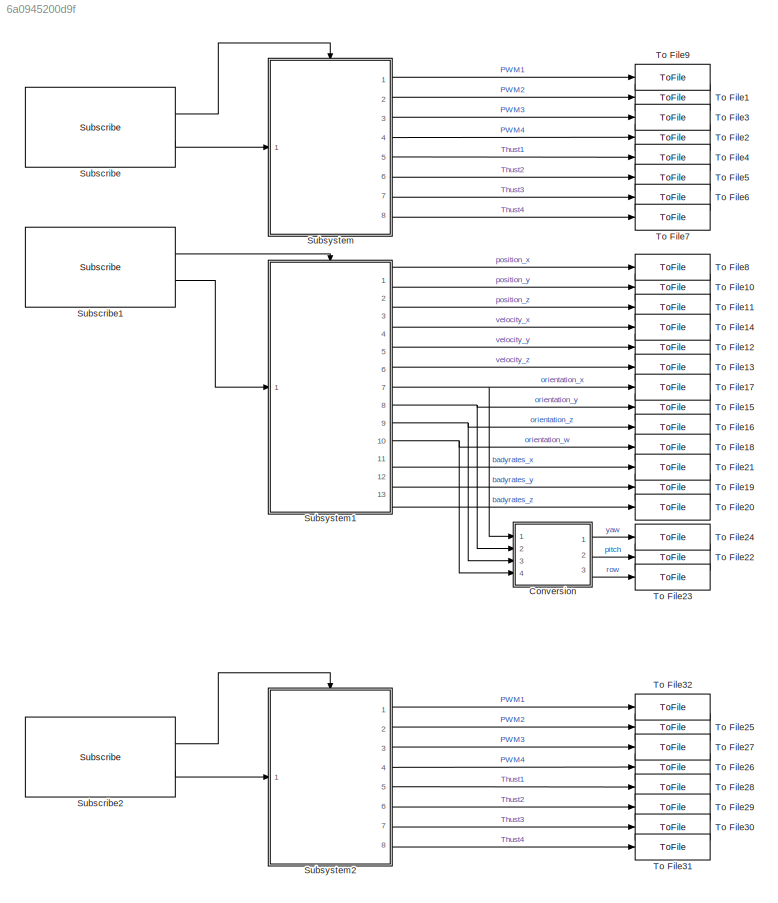
MODEL slx_6a0945200d9f
KIND model
CONFIG AbsTol = auto
CONFIG EnableMultiTasking = off
CONFIG FixedStep = auto
CONFIG MaxStep = auto
CONFIG MinStep = auto
CONFIG RelTol = 1e-3
CONFIG SampleTimeConstraint = Unconstrained
CONFIG SolverName = FixedStepAuto
CONFIG StartTime = 0.0
CONFIG StopTime = inf
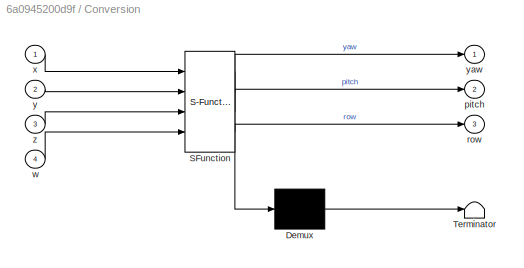
BLOCK [SubSystem] Conversion
  ErrorFcn = Stateflow.Translate.translate
  PermitHierarchicalResolution = ExplicitOnly
  Ports = [4, 3]
  RequestExecContextInheritance = off
  SFBlockType = MATLAB Function
  TreatAsAtomicUnit = on
BLOCK [Demux] Conversion/ Demux 
  Outputs = 1
  Ports = [1, 1]
BLOCK [S-Function] Conversion/ SFunction 
  EnableBusSupport = on
  FunctionName = sf_sfun
  PortCounts = [4 4]
  Ports = [4, 4]
  SFcnIsStateOwnerBlock = off
  SFunctionDeploymentMode = off
  Tag = Stateflow S-Function 1
BLOCK [Terminator] Conversion/ Terminator 
BLOCK [Outport] Conversion/pitch
  Port = 2
BLOCK [Outport] Conversion/row
  Port = 3
BLOCK [Inport] Conversion/w
  Port = 4
BLOCK [Inport] Conversion/x
BLOCK [Inport] Conversion/y
  Port = 2
BLOCK [Outport] Conversion/yaw
  VectorParamsAs1DForOutWhenUnconnected = off
BLOCK [Inport] Conversion/z
  Port = 3
BLOCK [Reference] Subscribe  REF=robotlib/Subscribe
  Ports = [0, 2]
  SourceBlock = robotlib/Subscribe
  SourceProductBaseCode = RR
  SourceType = ROS Subscribe
BLOCK [Reference] Subscribe1  REF=robotlib/Subscribe
  Ports = [0, 2]
  SourceBlock = robotlib/Subscribe
  SourceProductBaseCode = RR
  SourceType = ROS Subscribe
BLOCK [Reference] Subscribe2  REF=robotlib/Subscribe
  Ports = [0, 2]
  SourceBlock = robotlib/Subscribe
  SourceProductBaseCode = RR
  SourceType = ROS Subscribe
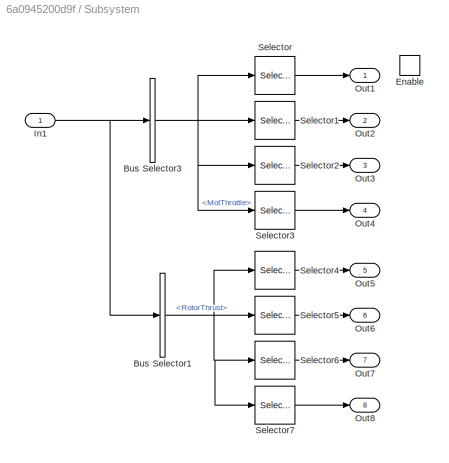
BLOCK [SubSystem] Subsystem
  Ports = [1, 8, 1]
  RequestExecContextInheritance = off
BLOCK [BusSelector] Subsystem/Bus Selector1
  OutputSignals = RotorThrust
  Ports = [1, 1]
BLOCK [BusSelector] Subsystem/Bus Selector3
  OutputSignals = MotThrottle
  Ports = [1, 1]
BLOCK [EnablePort] Subsystem/Enable
  Ports = []
BLOCK [Inport] Subsystem/In1
BLOCK [Outport] Subsystem/Out1
BLOCK [Outport] Subsystem/Out2
  Port = 2
BLOCK [Outport] Subsystem/Out3
  Port = 3
BLOCK [Outport] Subsystem/Out4
  Port = 4
BLOCK [Outport] Subsystem/Out5
  Port = 5
BLOCK [Outport] Subsystem/Out6
  Port = 6
BLOCK [Outport] Subsystem/Out7
  Port = 7
BLOCK [Outport] Subsystem/Out8
  Port = 8
BLOCK [Selector] Subsystem/Selector
  IndexOptions = Index vector (dialog),Index vector (dialog)
  Indices = 1,1
  InputPortWidth = 3
  NumberOfDimensions = 2
  OutputSizes = 1,1
  Ports = [1, 1]
BLOCK [Selector] Subsystem/Selector1
  IndexOptions = Index vector (dialog),Index vector (dialog)
  Indices = 2,1
  InputPortWidth = 3
  NumberOfDimensions = 2
  OutputSizes = 1,1
  Ports = [1, 1]
BLOCK [Selector] Subsystem/Selector2
  IndexOptions = Index vector (dialog),Index vector (dialog)
  Indices = 3,1
  InputPortWidth = 3
  NumberOfDimensions = 2
  OutputSizes = 1,1
  Ports = [1, 1]
BLOCK [Selector] Subsystem/Selector3
  IndexOptions = Index vector (dialog),Index vector (dialog)
  Indices = 4,1
  InputPortWidth = 3
  NumberOfDimensions = 2
  OutputSizes = 1,1
  Ports = [1, 1]
BLOCK [Selector] Subsystem/Selector4
  IndexOptions = Index vector (dialog),Index vector (dialog)
  Indices = 1,1
  InputPortWidth = 3
  NumberOfDimensions = 2
  OutputSizes = 1,1
  Ports = [1, 1]
BLOCK [Selector] Subsystem/Selector5
  IndexOptions = Index vector (dialog),Index vector (dialog)
  Indices = 2,1
  InputPortWidth = 3
  NumberOfDimensions = 2
  OutputSizes = 1,1
  Ports = [1, 1]
BLOCK [Selector] Subsystem/Selector6
  IndexOptions = Index vector (dialog),Index vector (dialog)
  Indices = 3,1
  InputPortWidth = 3
  NumberOfDimensions = 2
  OutputSizes = 1,1
  Ports = [1, 1]
BLOCK [Selector] Subsystem/Selector7
  IndexOptions = Index vector (dialog),Index vector (dialog)
  Indices = 4,1
  InputPortWidth = 3
  NumberOfDimensions = 2
  OutputSizes = 1,1
  Ports = [1, 1]
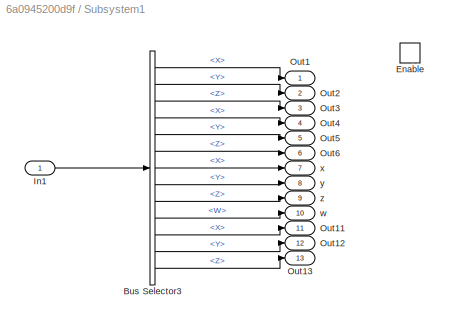
BLOCK [SubSystem] Subsystem1
  Ports = [1, 13, 1]
  RequestExecContextInheritance = off
BLOCK [BusSelector] Subsystem1/Bus Selector3
  OutputSignals = Position.X,Position.Y,Position.Z,Velocity.X,Velocity.Y,Velocity.Z,Orientation.X,Orientation.Y,Orientation.Z,Orientation.W,Bodyrates.X,Bodyrates.Y,Bodyrates.Z
  Ports = [1, 13]
BLOCK [EnablePort] Subsystem1/Enable
  Ports = []
BLOCK [Inport] Subsystem1/In1
BLOCK [Outport] Subsystem1/Out1
BLOCK [Outport] Subsystem1/Out11
  Port = 11
BLOCK [Outport] Subsystem1/Out12
  Port = 12
BLOCK [Outport] Subsystem1/Out13
  Port = 13
BLOCK [Outport] Subsystem1/Out2
  Port = 2
BLOCK [Outport] Subsystem1/Out3
  Port = 3
BLOCK [Outport] Subsystem1/Out4
  Port = 4
BLOCK [Outport] Subsystem1/Out5
  Port = 5
BLOCK [Outport] Subsystem1/Out6
  Port = 6
BLOCK [Outport] Subsystem1/w
  Port = 10
BLOCK [Outport] Subsystem1/x
  Port = 7
BLOCK [Outport] Subsystem1/y
  Port = 8
BLOCK [Outport] Subsystem1/z
  Port = 9
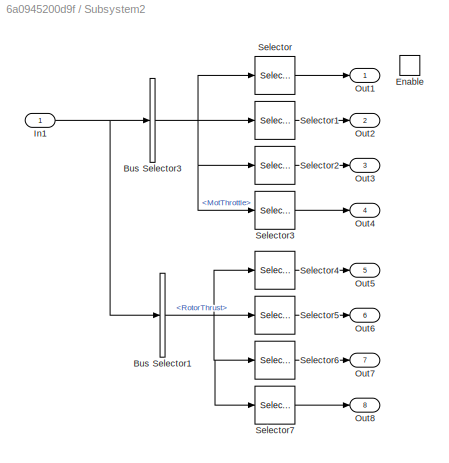
BLOCK [SubSystem] Subsystem2
  Ports = [1, 8, 1]
  RequestExecContextInheritance = off
BLOCK [BusSelector] Subsystem2/Bus Selector1
  OutputSignals = RotorThrust
  Ports = [1, 1]
BLOCK [BusSelector] Subsystem2/Bus Selector3
  OutputSignals = MotThrottle
  Ports = [1, 1]
BLOCK [EnablePort] Subsystem2/Enable
  Ports = []
BLOCK [Inport] Subsystem2/In1
BLOCK [Outport] Subsystem2/Out1
BLOCK [Outport] Subsystem2/Out2
  Port = 2
BLOCK [Outport] Subsystem2/Out3
  Port = 3
BLOCK [Outport] Subsystem2/Out4
  Port = 4
BLOCK [Outport] Subsystem2/Out5
  Port = 5
BLOCK [Outport] Subsystem2/Out6
  Port = 6
BLOCK [Outport] Subsystem2/Out7
  Port = 7
BLOCK [Outport] Subsystem2/Out8
  Port = 8
BLOCK [Selector] Subsystem2/Selector
  IndexOptions = Index vector (dialog),Index vector (dialog)
  Indices = 1,1
  InputPortWidth = 3
  NumberOfDimensions = 2
  OutputSizes = 1,1
  Ports = [1, 1]
BLOCK [Selector] Subsystem2/Selector1
  IndexOptions = Index vector (dialog),Index vector (dialog)
  Indices = 2,1
  InputPortWidth = 3
  NumberOfDimensions = 2
  OutputSizes = 1,1
  Ports = [1, 1]
BLOCK [Selector] Subsystem2/Selector2
  IndexOptions = Index vector (dialog),Index vector (dialog)
  Indices = 3,1
  InputPortWidth = 3
  NumberOfDimensions = 2
  OutputSizes = 1,1
  Ports = [1, 1]
BLOCK [Selector] Subsystem2/Selector3
  IndexOptions = Index vector (dialog),Index vector (dialog)
  Indices = 4,1
  InputPortWidth = 3
  NumberOfDimensions = 2
  OutputSizes = 1,1
  Ports = [1, 1]
BLOCK [Selector] Subsystem2/Selector4
  IndexOptions = Index vector (dialog),Index vector (dialog)
  Indices = 1,1
  InputPortWidth = 3
  NumberOfDimensions = 2
  OutputSizes = 1,1
  Ports = [1, 1]
BLOCK [Selector] Subsystem2/Selector5
  IndexOptions = Index vector (dialog),Index vector (dialog)
  Indices = 2,1
  InputPortWidth = 3
  NumberOfDimensions = 2
  OutputSizes = 1,1
  Ports = [1, 1]
BLOCK [Selector] Subsystem2/Selector6
  IndexOptions = Index vector (dialog),Index vector (dialog)
  Indices = 3,1
  InputPortWidth = 3
  NumberOfDimensions = 2
  OutputSizes = 1,1
  Ports = [1, 1]
BLOCK [Selector] Subsystem2/Selector7
  IndexOptions = Index vector (dialog),Index vector (dialog)
  Indices = 4,1
  InputPortWidth = 3
  NumberOfDimensions = 2
  OutputSizes = 1,1
  Ports = [1, 1]
BLOCK [ToFile] To File1
  Filename = Data/PWM2.mat
  MatrixName = PWM2
  Ports = [1]
BLOCK [ToFile] To File10
  Filename = Data/py.mat
  MatrixName = py
  Ports = [1]
BLOCK [ToFile] To File11
  Filename = Data/pz.mat
  MatrixName = pz
  Ports = [1]
BLOCK [ToFile] To File12
  Filename = Data/vy.mat
  MatrixName = vy
  Ports = [1]
BLOCK [ToFile] To File13
  Filename = Data/vz.mat
  MatrixName = vz
  Ports = [1]
BLOCK [ToFile] To File14
  Filename = Data/vx.mat
  MatrixName = vx
  Ports = [1]
BLOCK [ToFile] To File15
  Filename = Data/oy.mat
  MatrixName = oy
  Ports = [1]
BLOCK [ToFile] To File16
  Filename = Data/oz.mat
  MatrixName = oz
  Ports = [1]
BLOCK [ToFile] To File17
  Filename = Data/ox.mat
  MatrixName = ox
  Ports = [1]
BLOCK [ToFile] To File18
  Filename = Data/ow.mat
  MatrixName = ow
  Ports = [1]
BLOCK [ToFile] To File19
  Filename = Data/by.mat
  MatrixName = by
  Ports = [1]
BLOCK [ToFile] To File2
  Filename = Data/PWM4.mat
  MatrixName = PWM4
  Ports = [1]
BLOCK [ToFile] To File20
  Filename = Data/bz.mat
  MatrixName = bz
  Ports = [1]
BLOCK [ToFile] To File21
  Filename = Data/bx.mat
  MatrixName = bx
  Ports = [1]
BLOCK [ToFile] To File22
  Filename = Data/pitch.mat
  MatrixName = pitch
  Ports = [1]
BLOCK [ToFile] To File23
  Filename = Data/row.mat
  MatrixName = row
  Ports = [1]
BLOCK [ToFile] To File24
  Filename = Data/yaw.mat
  MatrixName = yaw
  Ports = [1]
BLOCK [ToFile] To File25
  Filename = Data/PWM2.mat
  MatrixName = PWM2
  Ports = [1]
BLOCK [ToFile] To File26
  Filename = Data/PWM4.mat
  MatrixName = PWM4
  Ports = [1]
BLOCK [ToFile] To File27
  Filename = Data/PWM3.mat
  MatrixName = PWM3
  Ports = [1]
BLOCK [ToFile] To File28
  Filename = Data/Thust1.mat
  MatrixName = Thust1
  Ports = [1]
BLOCK [ToFile] To File29
  Filename = Data/Thust2.mat
  MatrixName = Thust2
  Ports = [1]
BLOCK [ToFile] To File3
  Filename = Data/PWM3.mat
  MatrixName = PWM3
  Ports = [1]
BLOCK [ToFile] To File30
  Filename = Data/Thust3.mat
  MatrixName = Thust3
  Ports = [1]
BLOCK [ToFile] To File31
  Filename = Data/Thust4.mat
  MatrixName = Thust4
  Ports = [1]
BLOCK [ToFile] To File32
  Filename = Data/PWM1.mat
  MatrixName = PWM1
  Ports = [1]
BLOCK [ToFile] To File4
  Filename = Data/Thust1.mat
  MatrixName = Thust1
  Ports = [1]
BLOCK [ToFile] To File5
  Filename = Data/Thust2.mat
  MatrixName = Thust2
  Ports = [1]
BLOCK [ToFile] To File6
  Filename = Data/Thust3.mat
  MatrixName = Thust3
  Ports = [1]
BLOCK [ToFile] To File7
  Filename = Data/Thust4.mat
  MatrixName = Thust4
  Ports = [1]
BLOCK [ToFile] To File8
  Filename = Data/px.mat
  MatrixName = px
  Ports = [1]
BLOCK [ToFile] To File9
  Filename = Data/PWM1.mat
  MatrixName = PWM1
  Ports = [1]
LINE Conversion:1 -> To File24:1
LINE Conversion:2 -> To File22:1
LINE Conversion:3 -> To File23:1
LINE Subscribe1:1 -> Subsystem1:enable
LINE Subscribe1:2 -> Subsystem1:1
LINE Subscribe2:1 -> Subsystem2:enable
LINE Subscribe2:2 -> Subsystem2:1
LINE Subscribe:1 -> Subsystem:enable
LINE Subscribe:2 -> Subsystem:1
NET Subsystem/Bus Selector1:1 -> Subsystem/Selector4:1, Subsystem/Selector5:1, Subsystem/Selector6:1, Subsystem/Selector7:1
NET Subsystem/Bus Selector3:1 -> Subsystem/Selector1:1, Subsystem/Selector2:1, Subsystem/Selector3:1, Subsystem/Selector:1
NET Subsystem/In1:1 -> Subsystem/Bus Selector1:1, Subsystem/Bus Selector3:1
LINE Subsystem/Selector1:1 -> Subsystem/Out2:1
LINE Subsystem/Selector2:1 -> Subsystem/Out3:1
LINE Subsystem/Selector3:1 -> Subsystem/Out4:1
LINE Subsystem/Selector4:1 -> Subsystem/Out5:1
LINE Subsystem/Selector5:1 -> Subsystem/Out6:1
LINE Subsystem/Selector6:1 -> Subsystem/Out7:1
LINE Subsystem/Selector7:1 -> Subsystem/Out8:1
LINE Subsystem/Selector:1 -> Subsystem/Out1:1
LINE Subsystem1/Bus Selector3:1 -> Subsystem1/Out1:1
LINE Subsystem1/Bus Selector3:10 -> Subsystem1/w:1
LINE Subsystem1/Bus Selector3:11 -> Subsystem1/Out11:1
LINE Subsystem1/Bus Selector3:12 -> Subsystem1/Out12:1
LINE Subsystem1/Bus Selector3:13 -> Subsystem1/Out13:1
LINE Subsystem1/Bus Selector3:2 -> Subsystem1/Out2:1
LINE Subsystem1/Bus Selector3:3 -> Subsystem1/Out3:1
LINE Subsystem1/Bus Selector3:4 -> Subsystem1/Out4:1
LINE Subsystem1/Bus Selector3:5 -> Subsystem1/Out5:1
LINE Subsystem1/Bus Selector3:6 -> Subsystem1/Out6:1
LINE Subsystem1/Bus Selector3:7 -> Subsystem1/x:1
LINE Subsystem1/Bus Selector3:8 -> Subsystem1/y:1
LINE Subsystem1/Bus Selector3:9 -> Subsystem1/z:1
LINE Subsystem1/In1:1 -> Subsystem1/Bus Selector3:1
LINE Subsystem1:1 -> To File8:1
NET Subsystem1:10 -> Conversion:4, To File18:1
LINE Subsystem1:11 -> To File21:1
LINE Subsystem1:12 -> To File19:1
LINE Subsystem1:13 -> To File20:1
LINE Subsystem1:2 -> To File10:1
LINE Subsystem1:3 -> To File11:1
LINE Subsystem1:4 -> To File14:1
LINE Subsystem1:5 -> To File12:1
LINE Subsystem1:6 -> To File13:1
NET Subsystem1:7 -> Conversion:1, To File17:1
NET Subsystem1:8 -> Conversion:2, To File15:1
NET Subsystem1:9 -> Conversion:3, To File16:1
NET Subsystem2/Bus Selector1:1 -> Subsystem2/Selector4:1, Subsystem2/Selector5:1, Subsystem2/Selector6:1, Subsystem2/Selector7:1
NET Subsystem2/Bus Selector3:1 -> Subsystem2/Selector1:1, Subsystem2/Selector2:1, Subsystem2/Selector3:1, Subsystem2/Selector:1
NET Subsystem2/In1:1 -> Subsystem2/Bus Selector1:1, Subsystem2/Bus Selector3:1
LINE Subsystem2/Selector1:1 -> Subsystem2/Out2:1
LINE Subsystem2/Selector2:1 -> Subsystem2/Out3:1
LINE Subsystem2/Selector3:1 -> Subsystem2/Out4:1
LINE Subsystem2/Selector4:1 -> Subsystem2/Out5:1
LINE Subsystem2/Selector5:1 -> Subsystem2/Out6:1
LINE Subsystem2/Selector6:1 -> Subsystem2/Out7:1
LINE Subsystem2/Selector7:1 -> Subsystem2/Out8:1
LINE Subsystem2/Selector:1 -> Subsystem2/Out1:1
LINE Subsystem2:1 -> To File32:1
LINE Subsystem2:2 -> To File25:1
LINE Subsystem2:3 -> To File27:1
LINE Subsystem2:4 -> To File26:1
LINE Subsystem2:5 -> To File28:1
LINE Subsystem2:6 -> To File29:1
LINE Subsystem2:7 -> To File30:1
LINE Subsystem2:8 -> To File31:1
LINE Subsystem:1 -> To File9:1
LINE Subsystem:2 -> To File1:1
LINE Subsystem:3 -> To File3:1
LINE Subsystem:4 -> To File2:1
LINE Subsystem:5 -> To File4:1
LINE Subsystem:6 -> To File5:1
LINE Subsystem:7 -> To File6:1
LINE Subsystem:8 -> To File7:1
note: NET lines group one-source signal fan-out (src -> all destinations, sorted); 1:1 wires keep LINE
CHART Conversion states=1 transitions=1
  STATE_LABEL 'eML_blk_kernel()'
  STATE_LABEL 'SCRIPT:\nfunction [yaw,pitch,row] = quat2eul(x,y,z,w)\n%#codegen\n\n% Convert the quaternion to a yaw angle (zyx euler angle)\neul = quat2eul([w,x,y,z]);\nyaw = eul(1);\npitch = eul(2);\nrow = eul(3);\nend\n\n'
CHART  states=0 transitions=0
